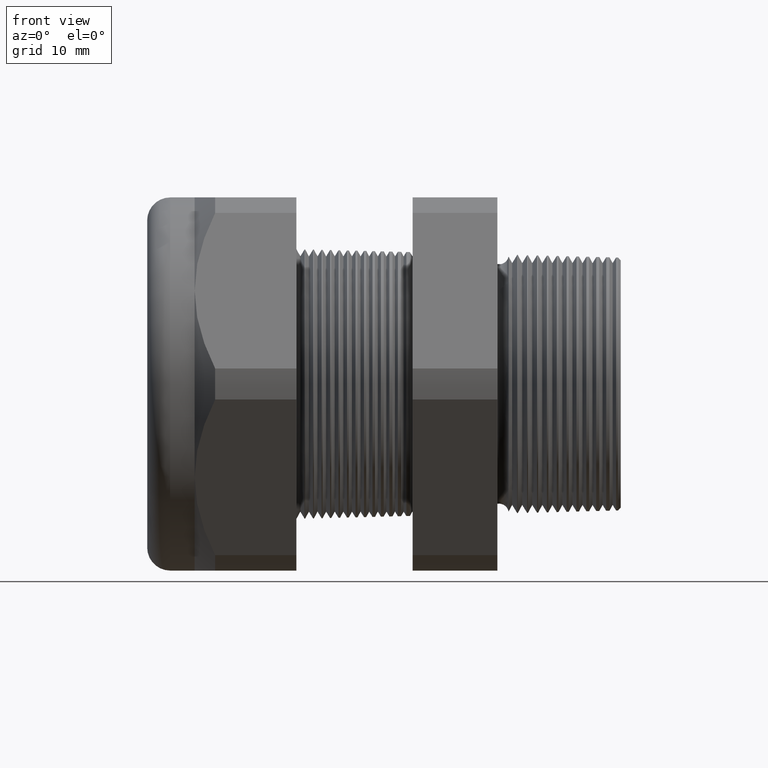
[diagram: clean part render]
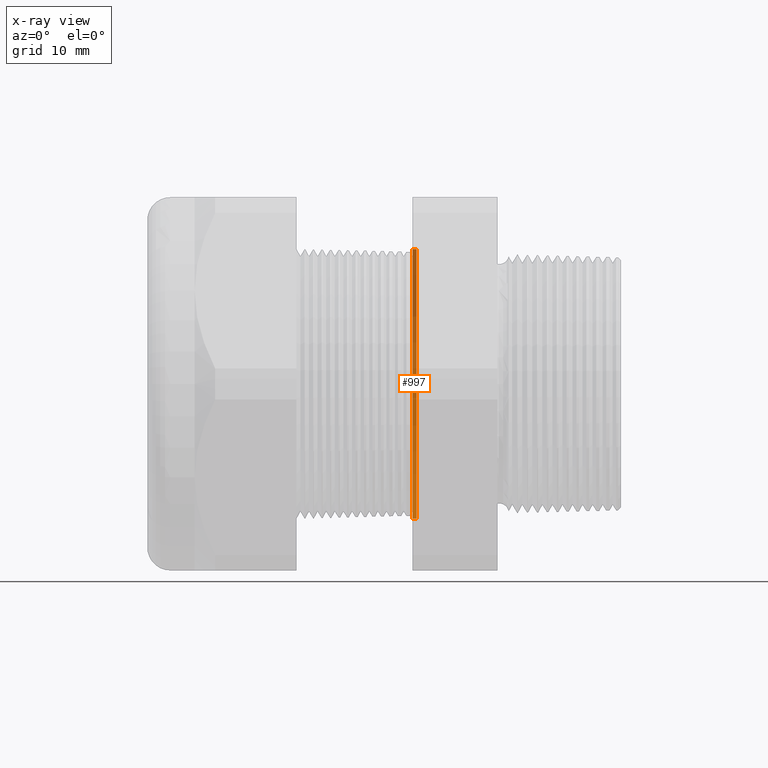
[diagram: x-ray — body ghosted, one internal face saturated and labeled with its STEP entity id]
A machine part, front view, then the same camera in x-ray: the body is ghosted and one INTERNAL B-rep face — a face not visible from any outside direction — is saturated and labeled: STEP entity #997.
In plain terms, the highlighted conical surface has half-angle 1.5 deg.
Its self-contained STEP definition (entity closure, byte-faithful):
#165 = EDGE_CURVE ( 'NONE', #1210, #1221, #1812, .T. ) ;
#979 = ORIENTED_EDGE ( 'NONE', *, *, #165, .T. ) ;
#997 = ADVANCED_FACE ( 'NONE', ( #3200 ), #3199, .F. ) ;
#998 = EDGE_LOOP ( 'NONE', ( #999, #1000, #1001, #979 ) ) ;
#999 = ORIENTED_EDGE ( 'NONE', *, *, #1212, .F. ) ;
#1000 = ORIENTED_EDGE ( 'NONE', *, *, #1213, .T. ) ;
#1001 = ORIENTED_EDGE ( 'NONE', *, *, #1286, .T. ) ;
#1210 = VERTEX_POINT ( 'NONE', #3519 ) ;
#1212 = EDGE_CURVE ( 'NONE', #1220, #1221, #3518, .T. ) ;
#1213 = EDGE_CURVE ( 'NONE', #1220, #1215, #3514, .T. ) ;
#1215 = VERTEX_POINT ( 'NONE', #3509 ) ;
#1220 = VERTEX_POINT ( 'NONE', #3563 ) ;
#1221 = VERTEX_POINT ( 'NONE', #3562 ) ;
#1286 = EDGE_CURVE ( 'NONE', #1215, #1210, #3682, .T. ) ;
#1810 = CARTESIAN_POINT ( 'NONE',  ( -0.6052755905511809600, 0.0000000000000000000, 0.0000000000000000000 ) ) ;
#1811 = AXIS2_PLACEMENT_3D ( 'NONE', #1810, #1873, #1872 ) ;
#1812 = CIRCLE ( 'NONE', #1811, 0.4696061802346682700 ) ;
#1872 = DIRECTION ( 'NONE',  ( 0.0000000000000000000, 0.0000000000000000000, 1.000000000000000000 ) ) ;
#1873 = DIRECTION ( 'NONE',  ( -1.000000000000000000, 0.0000000000000000000, 0.0000000000000000000 ) ) ;
#3195 = DIRECTION ( 'NONE',  ( 0.0000000000000000000, 0.0000000000000000000, 1.000000000000000000 ) ) ;
#3196 = DIRECTION ( 'NONE',  ( -1.000000000000000000, 0.0000000000000000000, 0.0000000000000000000 ) ) ;
#3197 = AXIS2_PLACEMENT_3D ( 'NONE', #3205, #3196, #3195 ) ;
#3199 = CONICAL_SURFACE ( 'NONE', #3197, 0.4692443365923945100, 0.02617993877990797800 ) ;
#3200 = FACE_OUTER_BOUND ( 'NONE', #998, .T. ) ;
#3205 = CARTESIAN_POINT ( 'NONE',  ( -0.5914573393463203900, 0.0000000000000000000, 0.0000000000000000000 ) ) ;
#3509 = CARTESIAN_POINT ( 'NONE',  ( -0.5914573393463203900, 5.746585748258992000E-017, 0.4692443365923945100 ) ) ;
#3510 = DIRECTION ( 'NONE',  ( 0.0000000000000000000, 0.0000000000000000000, -1.000000000000000000 ) ) ;
#3511 = DIRECTION ( 'NONE',  ( 1.000000000000000000, 0.0000000000000000000, 0.0000000000000000000 ) ) ;
#3512 = CARTESIAN_POINT ( 'NONE',  ( -0.5914573393463203900, 0.0000000000000000000, 0.0000000000000000000 ) ) ;
#3513 = AXIS2_PLACEMENT_3D ( 'NONE', #3512, #3511, #3510 ) ;
#3514 = CIRCLE ( 'NONE', #3513, 0.4692443365923945100 ) ;
#3515 = DIRECTION ( 'NONE',  ( -0.9996573249755573700, 3.205751595667405400E-018, -0.02617694830786618600 ) ) ;
#3516 = VECTOR ( 'NONE', #3515, 39.37007874015748100 ) ;
#3517 = CARTESIAN_POINT ( 'NONE',  ( -0.5914573393463203900, 5.746585748258992000E-017, -0.4692443365923945100 ) ) ;
#3518 = LINE ( 'NONE', #3517, #3516 ) ;
#3519 = CARTESIAN_POINT ( 'NONE',  ( -0.6052755905511809600, 0.0000000000000000000, 0.4696061802346682100 ) ) ;
#3562 = CARTESIAN_POINT ( 'NONE',  ( -0.6052755905511809600, 5.751017054842014700E-017, -0.4696061802346682100 ) ) ;
#3563 = CARTESIAN_POINT ( 'NONE',  ( -0.5914573393463203900, 0.0000000000000000000, -0.4692443365923945100 ) ) ;
#3679 = DIRECTION ( 'NONE',  ( -0.9996573249755573700, 0.0000000000000000000, 0.02617694830786618600 ) ) ;
#3680 = VECTOR ( 'NONE', #3679, 39.37007874015748100 ) ;
#3681 = CARTESIAN_POINT ( 'NONE',  ( -0.5914573393463203900, 0.0000000000000000000, 0.4692443365923945100 ) ) ;
#3682 = LINE ( 'NONE', #3681, #3680 ) ;